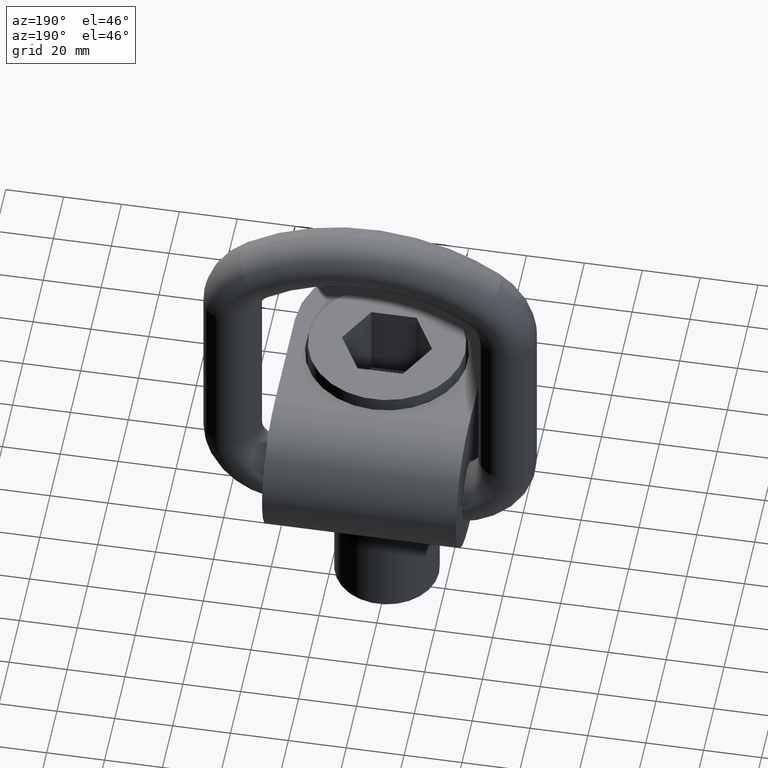
[diagram: clean part render]
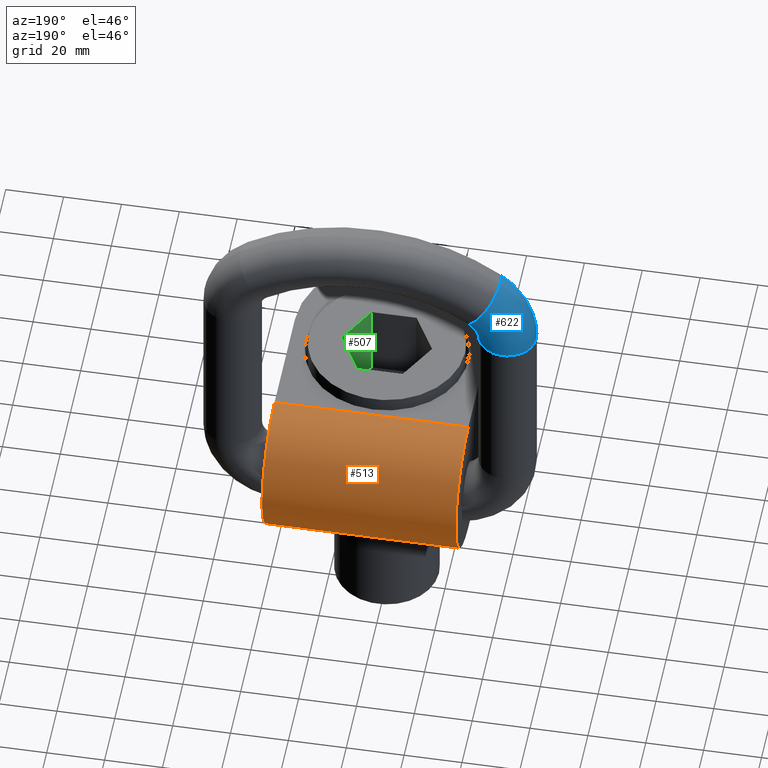
[diagram: same view with three faces highlighted in distinct colors, each labeled with its STEP entity id]
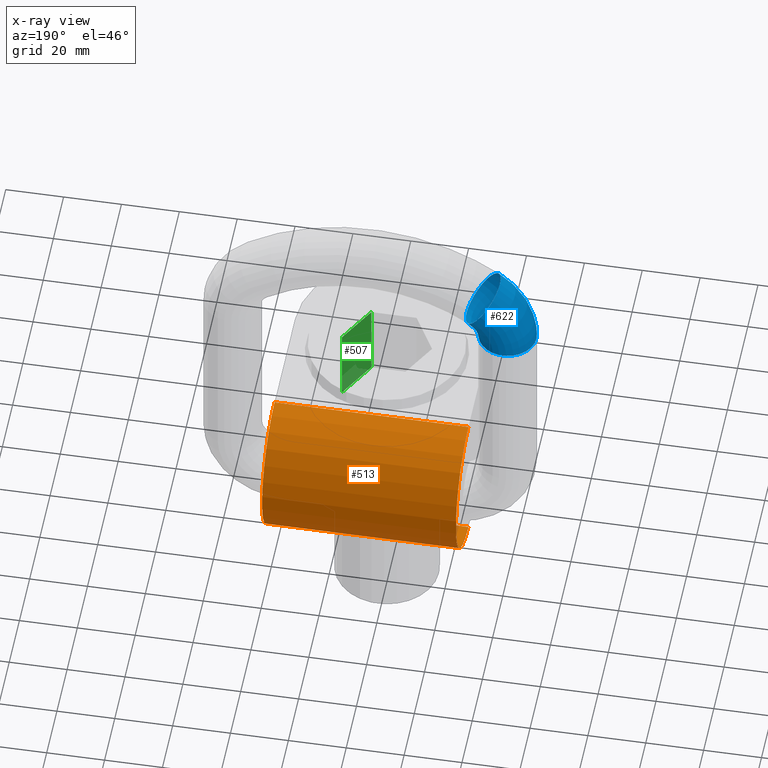
[diagram: x-ray of the same camera — body ghosted, the three highlighted faces saturated]
A machine part, auxiliary view with three faces highlighted in distinct colors.
The next image is the same camera in x-ray (body ghosted, the three faces saturated) — at least one of them is partly hidden behind the body in this view.
Their STEP definitions:

[orange] entity #513 — the highlighted cylindrical surface (partial cylindrical patch) has radius 24.5 mm, axis along (-1, 0, 0).
#202=CYLINDRICAL_SURFACE('',#2298,24.5);
#311=CIRCLE('',#2296,24.5);
#312=CIRCLE('',#2297,24.5);
#513=ADVANCED_FACE('',(#686),#202,.T.);
#686=FACE_OUTER_BOUND('',#796,.T.);
#796=EDGE_LOOP('',(#1045,#1046,#1047,#1048));
#1045=ORIENTED_EDGE('',*,*,#1804,.T.);
#1046=ORIENTED_EDGE('',*,*,#1801,.F.);
#1047=ORIENTED_EDGE('',*,*,#1805,.F.);
#1048=ORIENTED_EDGE('',*,*,#1798,.T.);
#1591=VERTEX_POINT('',#3589);
#1592=VERTEX_POINT('',#3591);
#1594=VERTEX_POINT('',#3597);
#1595=VERTEX_POINT('',#3599);
#1798=EDGE_CURVE('',#1591,#1592,#2018,.T.);
#1801=EDGE_CURVE('',#1594,#1595,#2020,.T.);
#1804=EDGE_CURVE('',#1592,#1595,#311,.T.);
#1805=EDGE_CURVE('',#1591,#1594,#312,.T.);
#2018=LINE('',#3592,#2126);
#2020=LINE('',#3598,#2128);
#2126=VECTOR('',#2486,1.);
#2128=VECTOR('',#2492,1.);
#2296=AXIS2_PLACEMENT_3D('',#3604,#2498,#2499);
#2297=AXIS2_PLACEMENT_3D('',#3605,#2500,#2501);
#2298=AXIS2_PLACEMENT_3D('',#3606,#2502,#2503);
#2486=DIRECTION('',(-1.,0.,0.));
#2492=DIRECTION('',(-1.,0.,0.));
#2498=DIRECTION('',(1.,0.,0.));
#2499=DIRECTION('',(0.,1.,0.));
#2500=DIRECTION('',(1.,0.,0.));
#2501=DIRECTION('',(0.,1.,0.));
#2502=DIRECTION('',(-1.,0.,0.));
#2503=DIRECTION('',(0.,0.,1.));
#3589=CARTESIAN_POINT('',(33.5,30.5,3.50771789478736E-15));
#3591=CARTESIAN_POINT('',(-33.5,30.5,3.50771789478736E-15));
#3592=CARTESIAN_POINT('',(33.5,30.5,3.50771789478736E-15));
#3597=CARTESIAN_POINT('',(33.5,30.5,49.));
#3598=CARTESIAN_POINT('',(33.5,30.5,49.));
#3599=CARTESIAN_POINT('',(-33.5,30.5,49.));
#3604=CARTESIAN_POINT('',(-33.5,30.5,24.5));
#3605=CARTESIAN_POINT('',(33.5,30.5,24.5));
#3606=CARTESIAN_POINT('',(33.5,30.5,24.5));

[blue] entity #622 — the highlighted toroidal blend (fillet) surface has major radius 20 mm and minor (blend) radius 10 mm.
#33=TOROIDAL_SURFACE('',#2376,20.,10.);
#284=FACE_BOUND('',#924,.T.);
#285=FACE_BOUND('',#925,.T.);
#325=CIRCLE('',#2373,10.);
#326=CIRCLE('',#2375,10.);
#622=ADVANCED_FACE('',(#284,#285),#33,.T.);
#924=EDGE_LOOP('',(#1498));
#925=EDGE_LOOP('',(#1499));
#1498=ORIENTED_EDGE('',*,*,#1989,.T.);
#1499=ORIENTED_EDGE('',*,*,#1988,.F.);
#1701=VERTEX_POINT('',#4856);
#1702=VERTEX_POINT('',#4859);
#1988=EDGE_CURVE('',#1701,#1701,#325,.T.);
#1989=EDGE_CURVE('',#1702,#1702,#326,.T.);
#2373=AXIS2_PLACEMENT_3D('',#4855,#2775,#2776);
#2375=AXIS2_PLACEMENT_3D('',#4858,#2779,#2780);
#2376=AXIS2_PLACEMENT_3D('',#4860,#2781,#2782);
#2775=DIRECTION('',(-8.32667268468867E-16,0.,-1.));
#2776=DIRECTION('',(-1.,0.,1.38777878078145E-15));
#2779=DIRECTION('',(-0.815364914991035,0.,-0.578947368421052));
#2780=DIRECTION('',(-0.578947368421052,0.,0.815364914991035));
#2781=DIRECTION('',(0.,-1.,0.));
#2782=DIRECTION('',(0.,0.,-1.));
#4855=CARTESIAN_POINT('',(-47.5,33.,99.2298334620742));
#4856=CARTESIAN_POINT('',(-57.5,33.,99.2298334620742));
#4858=CARTESIAN_POINT('',(-39.078947368421,33.,115.537131761895));
#4859=CARTESIAN_POINT('',(-44.8684210526316,33.,123.690780911805));
#4860=CARTESIAN_POINT('',(-27.5,33.,99.2298334620742));

[green] entity #507 — the highlighted planar face has unit normal (0.866, -0.5, 0).
#507=ADVANCED_FACE('',(#683),#630,.F.);
#630=PLANE('',#2258);
#683=FACE_OUTER_BOUND('',#780,.T.);
#780=EDGE_LOOP('',(#950,#951,#952,#953));
#950=ORIENTED_EDGE('',*,*,#1718,.F.);
#951=ORIENTED_EDGE('',*,*,#1719,.T.);
#952=ORIENTED_EDGE('',*,*,#1716,.T.);
#953=ORIENTED_EDGE('',*,*,#1707,.T.);
#1508=VERTEX_POINT('',#2798);
#1509=VERTEX_POINT('',#2800);
#1515=VERTEX_POINT('',#2818);
#1516=VERTEX_POINT('',#2822);
#1707=EDGE_CURVE('',#1509,#1508,#1994,.T.);
#1716=EDGE_CURVE('',#1515,#1509,#2003,.T.);
#1718=EDGE_CURVE('',#1516,#1508,#2005,.T.);
#1719=EDGE_CURVE('',#1516,#1515,#2006,.T.);
#1994=LINE('',#2799,#2102);
#2003=LINE('',#2817,#2111);
#2005=LINE('',#2821,#2113);
#2006=LINE('',#2823,#2114);
#2102=VECTOR('',#2386,1.);
#2111=VECTOR('',#2401,1.);
#2113=VECTOR('',#2405,1.);
#2114=VECTOR('',#2406,1.);
#2258=AXIS2_PLACEMENT_3D('',#2824,#2407,#2408);
#2386=DIRECTION('',(-0.5,-0.866025403784439,0.));
#2401=DIRECTION('',(0.,0.,-1.));
#2405=DIRECTION('',(0.,0.,-1.));
#2406=DIRECTION('',(0.5,0.866025403784439,0.));
#2407=DIRECTION('',(0.866025403784439,-0.5,0.));
#2408=DIRECTION('',(0.5,0.866025403784439,0.));
#2798=CARTESIAN_POINT('',(7.79422863405995,-13.5,26.));
#2799=CARTESIAN_POINT('',(7.79422863405995,-13.5,26.));
#2800=CARTESIAN_POINT('',(15.5884572681199,0.,26.));
#2817=CARTESIAN_POINT('',(15.5884572681199,0.,26.));
#2818=CARTESIAN_POINT('',(15.5884572681199,0.,53.));
#2821=CARTESIAN_POINT('',(7.79422863405995,-13.5,26.));
#2822=CARTESIAN_POINT('',(7.79422863405995,-13.5,53.));
#2823=CARTESIAN_POINT('',(11.6913429510899,-6.75,53.));
#2824=CARTESIAN_POINT('',(7.79422863405995,-13.5,26.));